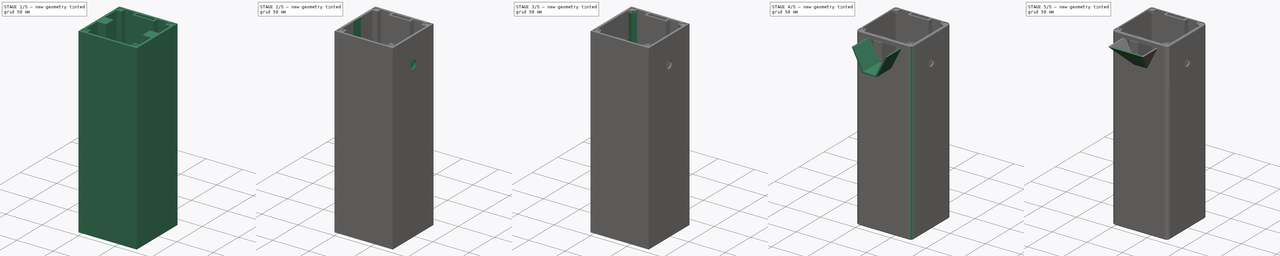
[diagram: build sequence overview — one tinted view per stage of 5, left to right]
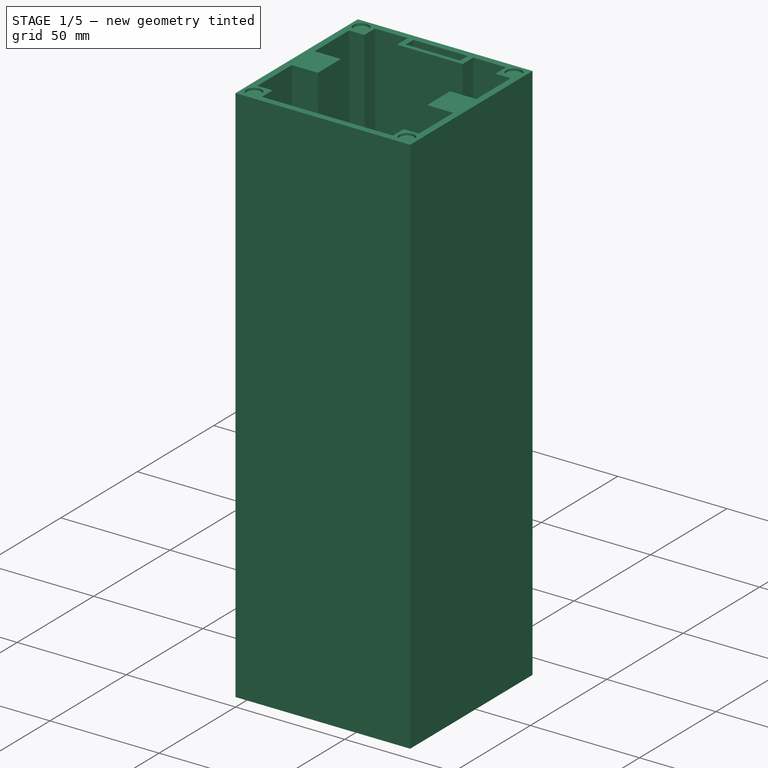
[diagram: stage 1 of 5 — iso view after this stage's code; geometry added in this stage tinted green]
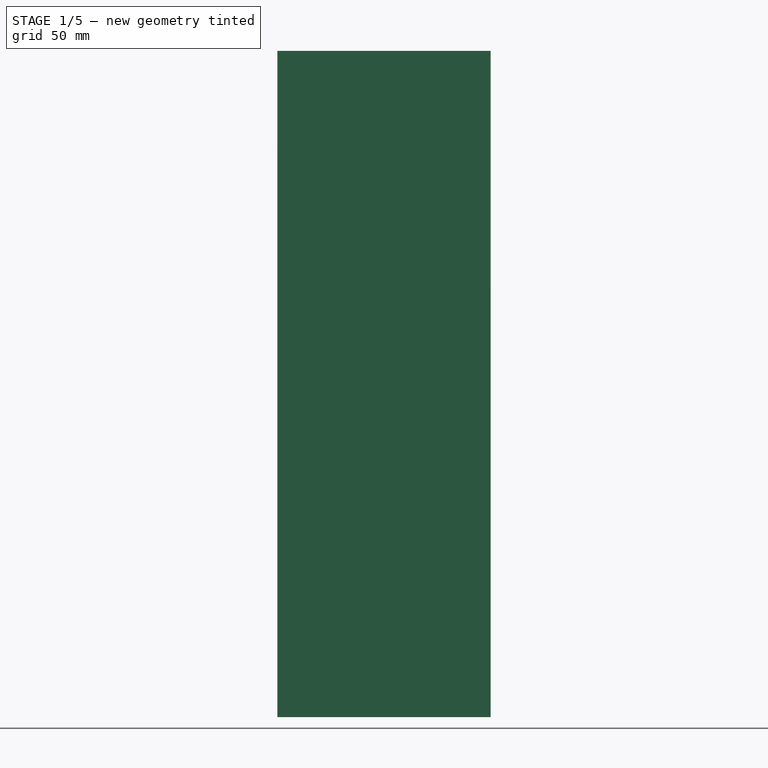
[diagram: stage 1 of 5 — front view after this stage's code; geometry added in this stage tinted green]
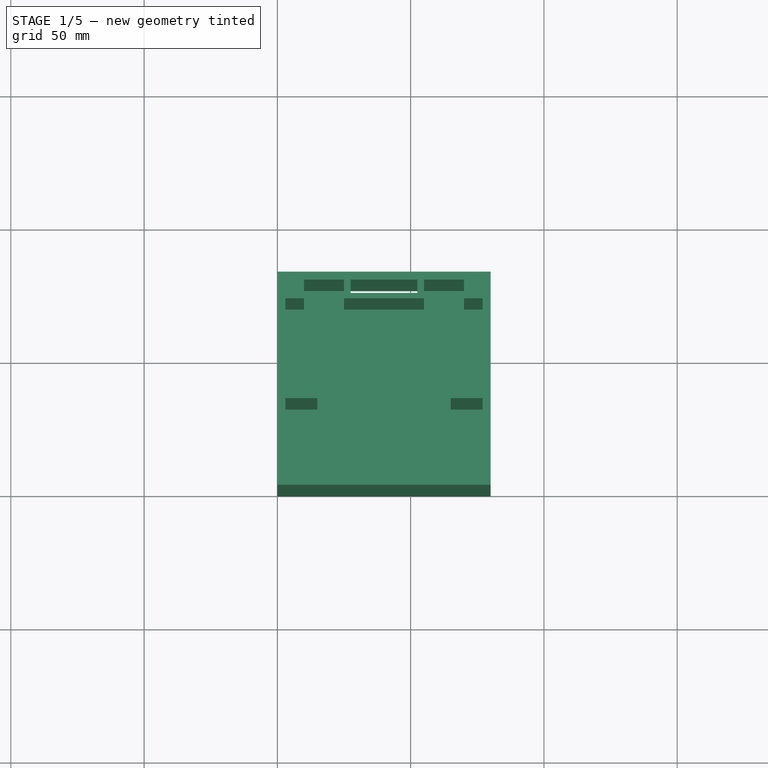
[diagram: stage 1 of 5 — top view after this stage's code; geometry added in this stage tinted green]
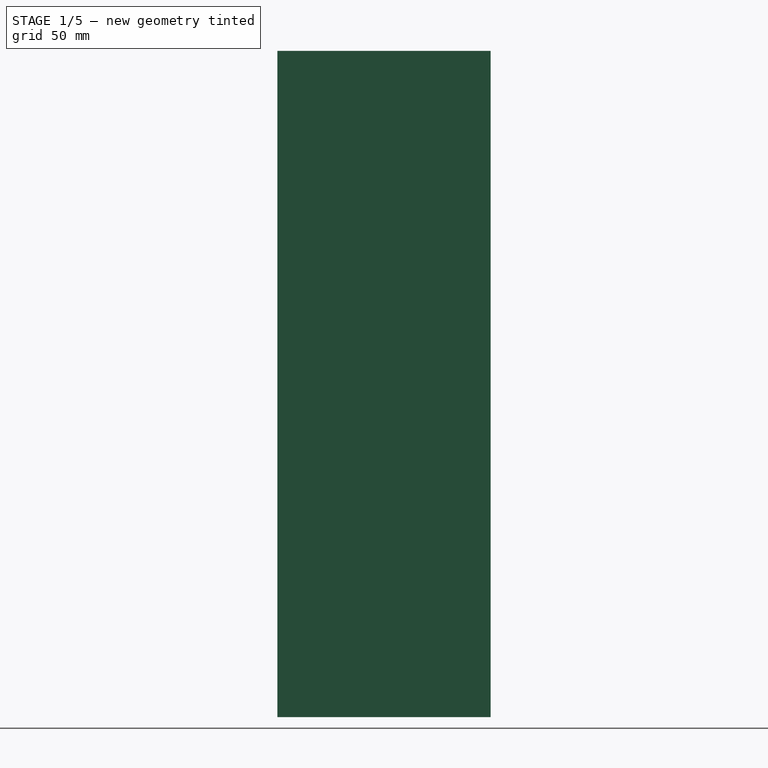
[diagram: stage 1 of 5 — right view after this stage's code; geometry added in this stage tinted green]
FCSTD DOCUMENT  (FreeCAD 0.17R12802 (Git))
Label: ermina_v4_tank
License: All rights reserved
LicenseURL: http://en.wikipedia.org/wiki/All_rights_reserved
objects: Sketcher::SketchObject×19, PartDesign::Pocket×16, PartDesign::Fillet×4, PartDesign::Pad×3, PartDesign::Chamfer×2, Part::Feature×2, Part::Plane×1
note: 66 computed .brp shape members not serialized (recipe doc carries the construction recipe); baked Part::Feature solids carry a one-line shape summary decoded from their .brp

FEATURE [Sketcher::SketchObject] Sketch
  MapMode = 5
  sketch-geometry (4):
    g0: LineSegment StartX=0 StartY=0 StartZ=0 EndX=80 EndY=0 EndZ=0
    g1: LineSegment StartX=80 StartY=0 StartZ=0 EndX=80 EndY=80 EndZ=0
    g2: LineSegment StartX=80 StartY=80 StartZ=0 EndX=0 EndY=80 EndZ=0
    g3: LineSegment StartX=0 StartY=80 StartZ=0 EndX=0 EndY=0 EndZ=0
  constraints (12):
    c: Coincident(g0,g1)
    c: Coincident(g1,g2)
    c: Coincident(g2,g3)
    c: Coincident(g3,g0)
    c: Horizontal(g0)
    c: Horizontal(g2)
    c: Vertical(g1)
    c: Vertical(g3)
    c: Coincident(g0,g-1)
    c: Equal(g2,g0)
    c: Equal(g0,g3)
    c: DistanceX(g0) = 80
FEATURE [PartDesign::Pad] Pad
  Length = 250
  Length2 = 100
  Profile = -> Sketch
  Type = 0
FEATURE [Sketcher::SketchObject] Sketch001
  ExternalGeometry = -> [Pad]
  MapMode = 5
  Placement = pos=(0,0,250) rot=(0,0,1;0rad)
  Support = -> [Pad]
  sketch-geometry (24):
    g0: LineSegment StartX=3 StartY=70 StartZ=0 EndX=10 EndY=70 EndZ=0
    g1: LineSegment StartX=10 StartY=70 StartZ=0 EndX=10 EndY=77 EndZ=0
    g2: LineSegment StartX=10 StartY=77 StartZ=0 EndX=25 EndY=77 EndZ=0
    g3: LineSegment StartX=25 StartY=77 StartZ=0 EndX=25 EndY=70 EndZ=0
    g4: LineSegment StartX=25 StartY=70 StartZ=0 EndX=55 EndY=70 EndZ=0
    g5: LineSegment StartX=55 StartY=70 StartZ=0 EndX=55 EndY=77 EndZ=0
    g6: LineSegment StartX=55 StartY=77 StartZ=0 EndX=70 EndY=77 EndZ=0
    g7: LineSegment StartX=70 StartY=77 StartZ=0 EndX=70 EndY=70 EndZ=0
    g8: LineSegment StartX=70 StartY=70 StartZ=0 EndX=77 EndY=70 EndZ=0
    g9: LineSegment StartX=77 StartY=70 StartZ=0 EndX=77 EndY=47.5 EndZ=0
    g10: LineSegment StartX=77 StartY=47.5 StartZ=0 EndX=65 EndY=47.5 EndZ=0
    g11: LineSegment StartX=65 StartY=47.5 StartZ=0 EndX=65 EndY=32.5 EndZ=0
    g12: LineSegment StartX=65 StartY=32.5 StartZ=0 EndX=77 EndY=32.5 EndZ=0
    g13: LineSegment StartX=77 StartY=32.5 StartZ=0 EndX=77 EndY=10 EndZ=0
    g14: LineSegment StartX=77 StartY=10 StartZ=0 EndX=70 EndY=10 EndZ=0
    g15: LineSegment StartX=70 StartY=10 StartZ=0 EndX=70 EndY=3 EndZ=0
    g16: LineSegment StartX=70 StartY=3 StartZ=0 EndX=10 EndY=3 EndZ=0
    g17: LineSegment StartX=10 StartY=3 StartZ=0 EndX=10 EndY=10 EndZ=0
    g18: LineSegment StartX=10 StartY=10 StartZ=0 EndX=3 EndY=10 EndZ=0
    g19: LineSegment StartX=3 StartY=10 StartZ=0 EndX=3 EndY=32.5 EndZ=0
    g20: LineSegment StartX=3 StartY=32.5 StartZ=0 EndX=15 EndY=32.5 EndZ=0
    g21: LineSegment StartX=15 StartY=32.5 StartZ=0 EndX=15 EndY=47.5 EndZ=0
    g22: LineSegment StartX=15 StartY=47.5 StartZ=0 EndX=3 EndY=47.5 EndZ=0
    g23: LineSegment StartX=3 StartY=47.5 StartZ=0 EndX=3 EndY=70 EndZ=0
  constraints (73):
    c: Horizontal(g0)
    c: Coincident(g0,g1)
    c: Vertical(g1)
    c: Coincident(g1,g2)
    c: Horizontal(g2)
    c: Coincident(g2,g3)
    c: Vertical(g3)
    c: Coincident(g3,g4)
    c: Horizontal(g4)
    c: Coincident(g4,g5)
    c: Coincident(g5,g6)
    c: Horizontal(g6)
    c: Coincident(g6,g7)
    c: Coincident(g7,g8)
    c: Horizontal(g8)
    c: Coincident(g8,g9)
    c: Vertical(g9)
    c: Coincident(g9,g10)
    c: Coincident(g10,g11)
    c: Vertical(g11)
    c: Coincident(g11,g12)
    c: Coincident(g12,g13)
    c: Coincident(g13,g14)
    c: Coincident(g14,g15)
    c: Vertical(g15)
    c: Coincident(g15,g16)
    c: Horizontal(g16)
    c: Coincident(g16,g17)
    c: Coincident(g17,g18)
    c: Coincident(g18,g19)
    c: Coincident(g19,g20)
    c: Horizontal(g20)
    c: Coincident(g20,g21)
    c: Coincident(g21,g22)
    c: Coincident(g22,g23)
    c: Coincident(g23,g0)
    c: Vertical(g23)
    c: Horizontal(g22)
    c: Horizontal(g10)
    c: Horizontal(g12)
    c: Horizontal(g14)
    c: Horizontal(g18)
    c: Vertical(g19)
    c: Vertical(g21)
    c: Vertical(g17)
    c: Vertical(g5)
    c: Vertical(g7)
    c: Vertical(g13)
    c: DistanceX(g4) = 30
    c: Equal(g23,g19)
    c: Equal(g19,g13)
    c: Equal(g13,g9)
    c: Equal(g8,g0)
    c: Equal(g0,g18)
    c: Equal(g18,g14)
    c: Equal(g17,g1)
    c: Equal(g1,g7)
    c: Equal(g7,g5)
    c: Equal(g5,g3)
    c: Equal(g3,g15)
    c: Equal(g6,g2)
    c: Equal(g12,g10)
    c: Equal(g10,g22)
    c: Equal(g22,g20)
    c: Equal(g21,g11)
    c: DistanceX(g-2,g0) = 3
    c: Distance(g6,g-3) = 3
    c: Distance(g8,g-4) = 3
    c: DistanceY(g-1,g15) = 3
    c: DistanceX(g14) = -7
    c: DistanceY(g15) = -7
    c: DistanceX(g22) = -12
    c: DistanceY(g11) = -15
FEATURE [PartDesign::Pocket] Pocket
  Length = 245
  Profile = -> Sketch001
  Type = 0
FEATURE [Sketcher::SketchObject] Sketch002
  ExternalGeometry = -> [Pocket]
  MapMode = 5
  Placement = pos=(0,0,250) rot=(0,0,1;0rad)
  Support = -> [Pocket]
  sketch-geometry (4):
    g0: Circle CenterX=5 CenterY=75 CenterZ=0 NormalX=0 NormalY=0 NormalZ=1 AngleXU=0 Radius=3.5
    g1: Circle CenterX=75 CenterY=75 CenterZ=0 NormalX=0 NormalY=0 NormalZ=1 AngleXU=0 Radius=3.5
    g2: Circle CenterX=5 CenterY=5 CenterZ=0 NormalX=0 NormalY=0 NormalZ=1 AngleXU=0 Radius=3.5
    g3: Circle CenterX=75 CenterY=5 CenterZ=0 NormalX=0 NormalY=0 NormalZ=1 AngleXU=0 Radius=3.5
  constraints (12):
    c: Equal(g3,g1)
    c: Equal(g1,g0)
    c: Equal(g0,g2)
    c: Radius(g1) = 3.5
    c: Distance(g0,g-3) = 5
    c: DistanceX(g-2,g0) = 5
    c: Distance(g1,g-3) = 5
    c: Distance(g1,g-4) = 5
    c: DistanceY(g-1,g2) = 5
    c: DistanceX(g-2,g2) = 5
    c: Distance(g3,g-4) = 5
    c: DistanceY(g-1,g3) = 5
FEATURE [PartDesign::Pocket] Pocket001
  Length = 1
  Profile = -> Sketch002
  Type = 0
FEATURE [Sketcher::SketchObject] Sketch003
  ExternalGeometry = -> [Pocket001]
  MapMode = 5
  Placement = pos=(0,0,250) rot=(0,0,1;0rad)
  Support = -> [Pocket001]
  sketch-geometry (4):
    g0: LineSegment StartX=27.5 StartY=77 StartZ=0 EndX=52.5 EndY=77 EndZ=0
    g1: LineSegment StartX=52.5 StartY=77 StartZ=0 EndX=52.5 EndY=72 EndZ=0
    g2: LineSegment StartX=52.5 StartY=72 StartZ=0 EndX=27.5 EndY=72 EndZ=0
    g3: LineSegment StartX=27.5 StartY=72 StartZ=0 EndX=27.5 EndY=77 EndZ=0
  constraints (14):
    c: Coincident(g0,g1)
    c: Coincident(g1,g2)
    c: Coincident(g2,g3)
    c: Coincident(g3,g0)
    c: Horizontal(g0)
    c: Horizontal(g2)
    c: Vertical(g1)
    c: Vertical(g3)
    c: Equal(g0,g2)
    c: Equal(g1,g3)
    c: Distance(g0,g-3) = 3
    c: DistanceY(g1) = -5
    c: DistanceX(g2) = -25
    c: DistanceX(g-2,g0) = 27.5
FEATURE [PartDesign::Pocket] Pocket002
  Length = 5
  Profile = -> Sketch003
  Type = 1
FEATURE [Sketcher::SketchObject] Sketch004
  ExternalGeometry = -> [Pocket002]
  MapMode = 5
  Placement = pos=(0,0,0) rot=(1,0,0;3.14159rad)
  Support = -> [Pocket002]
  sketch-geometry (4):
    g0: Circle CenterX=5 CenterY=-5 CenterZ=0 NormalX=0 NormalY=0 NormalZ=1 AngleXU=0 Radius=3.5
    g1: Circle CenterX=75 CenterY=-5 CenterZ=0 NormalX=0 NormalY=0 NormalZ=1 AngleXU=0 Radius=3.5
    g2: Circle CenterX=5 CenterY=-75 CenterZ=0 NormalX=0 NormalY=0 NormalZ=1 AngleXU=0 Radius=3.5
    g3: Circle CenterX=75 CenterY=-75 CenterZ=0 NormalX=0 NormalY=0 NormalZ=1 AngleXU=0 Radius=3.5
  constraints (12):
    c: Equal(g3,g1)
    c: Equal(g1,g0)
    c: Equal(g0,g2)
    c: Radius(g0) = 3.5
    c: Distance(g0,g-3) = 5
    c: DistanceX(g-2,g0) = 5
    c: Distance(g1,g-3) = 5
    c: Distance(g1,g-4) = 5
    c: Distance(g3,g-5) = 5
    c: Distance(g3,g-4) = 5
    c: Distance(g2,g-5) = 5
    c: DistanceX(g-2,g2) = 5
FEATURE [PartDesign::Pocket] Pocket003
  Length = 1
  Profile = -> Sketch004
  Type = 0
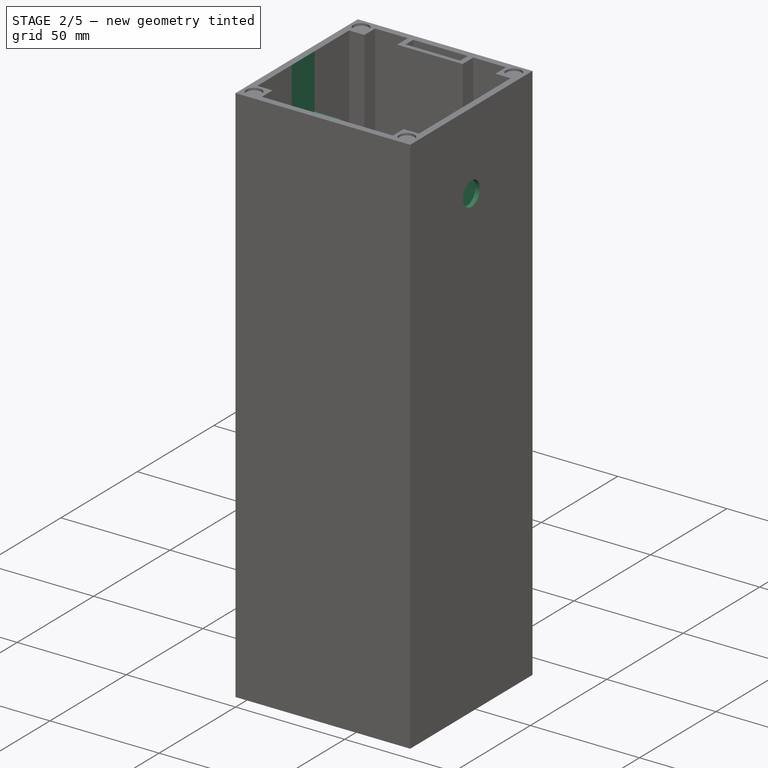
[diagram: stage 2 of 5 — iso view after this stage's code; geometry added in this stage tinted green]
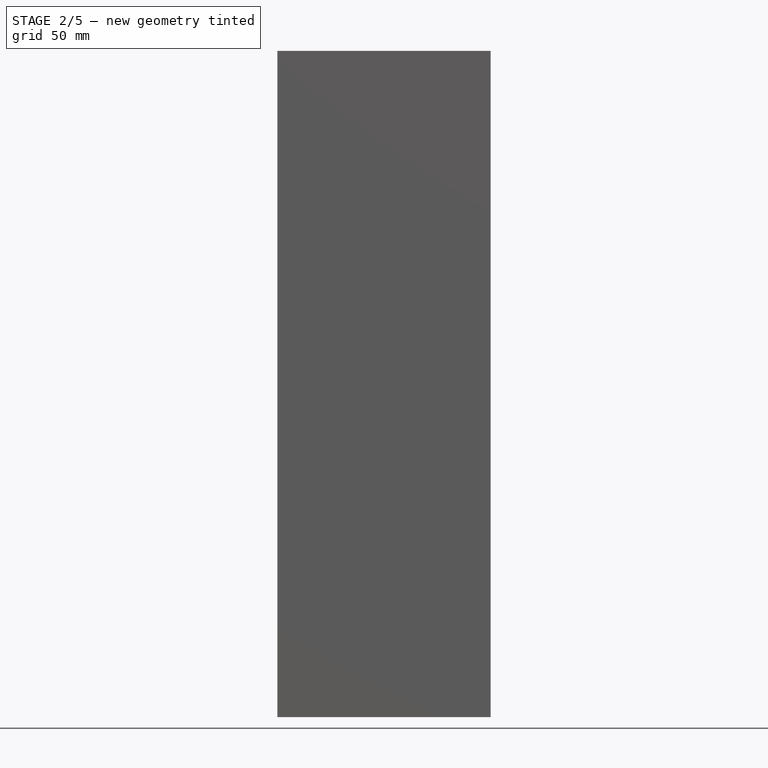
[diagram: stage 2 of 5 — front view after this stage's code; geometry added in this stage tinted green]
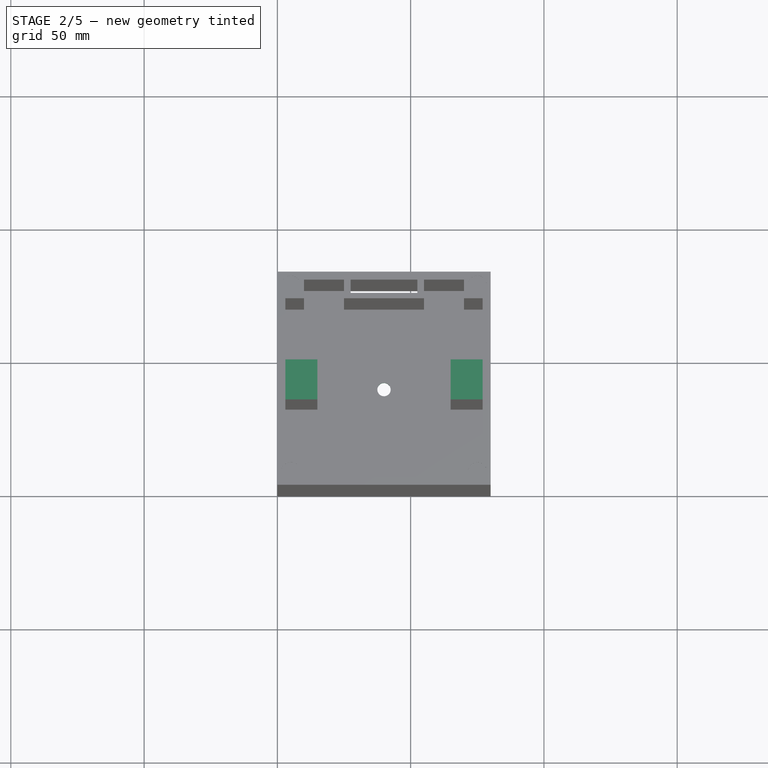
[diagram: stage 2 of 5 — top view after this stage's code; geometry added in this stage tinted green]
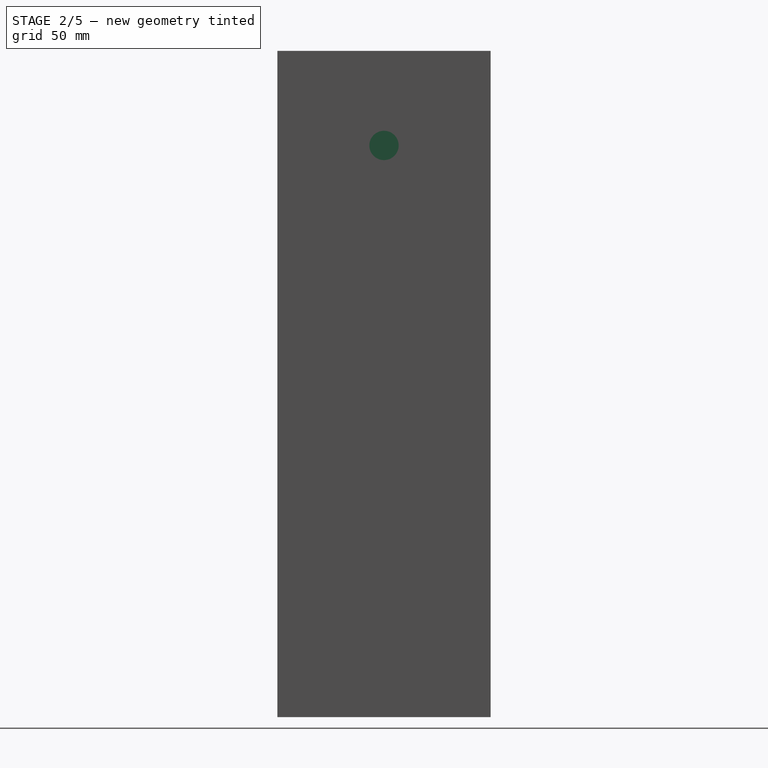
[diagram: stage 2 of 5 — right view after this stage's code; geometry added in this stage tinted green]
FEATURE [Sketcher::SketchObject] Sketch005
  ExternalGeometry = -> [Pocket003]
  MapMode = 5
  Placement = pos=(0,0,250) rot=(0,0,1;0rad)
  Support = -> [Pocket003]
  sketch-geometry (8):
    g0: LineSegment StartX=15 StartY=47.5 StartZ=0 EndX=3 EndY=47.5 EndZ=0
    g1: LineSegment StartX=3 StartY=47.5 StartZ=0 EndX=3 EndY=32.5 EndZ=0
    g2: LineSegment StartX=3 StartY=32.5 StartZ=0 EndX=15 EndY=32.5 EndZ=0
    g3: LineSegment StartX=15 StartY=32.5 StartZ=0 EndX=15 EndY=47.5 EndZ=0
    g4: LineSegment StartX=77 StartY=32.5 StartZ=0 EndX=65 EndY=32.5 EndZ=0
    g5: LineSegment StartX=65 StartY=32.5 StartZ=0 EndX=65 EndY=47.5 EndZ=0
    g6: LineSegment StartX=65 StartY=47.5 StartZ=0 EndX=77 EndY=47.5 EndZ=0
    g7: LineSegment StartX=77 StartY=47.5 StartZ=0 EndX=77 EndY=32.5 EndZ=0
  constraints (20):
    c: Coincident(g0,g1)
    c: Coincident(g1,g2)
    c: Coincident(g2,g3)
    c: Coincident(g3,g0)
    c: Horizontal(g0)
    c: Horizontal(g2)
    c: Vertical(g1)
    c: Vertical(g3)
    c: Coincident(g0,g-4)
    c: Coincident(g1,g-5)
    c: Coincident(g4,g5)
    c: Coincident(g5,g6)
    c: Coincident(g6,g7)
    c: Coincident(g7,g4)
    c: Horizontal(g4)
    c: Horizontal(g6)
    c: Vertical(g5)
    c: Vertical(g7)
    c: Coincident(g4,g-7)
    c: Coincident(g5,g-8)
FEATURE [PartDesign::Pocket] Pocket004
  Length = 25
  Profile = -> Sketch005
  Type = 0
FEATURE [Sketcher::SketchObject] Sketch006
  ExternalGeometry = -> [Pocket004]
  MapMode = 5
  Placement = pos=(0,0,0) rot=(1,0,0;3.14159rad)
  Support = -> [Pocket004]
  sketch-geometry (8):
    g0: LineSegment StartX=2 StartY=-34.5 StartZ=0 EndX=13 EndY=-34.5 EndZ=0
    g1: LineSegment StartX=13 StartY=-34.5 StartZ=0 EndX=13 EndY=-45.5 EndZ=0
    g2: LineSegment StartX=13 StartY=-45.5 StartZ=0 EndX=2 EndY=-45.5 EndZ=0
    g3: LineSegment StartX=2 StartY=-45.5 StartZ=0 EndX=2 EndY=-34.5 EndZ=0
    g4: LineSegment StartX=67 StartY=-34.5 StartZ=0 EndX=78 EndY=-34.5 EndZ=0
    g5: LineSegment StartX=78 StartY=-34.5 StartZ=0 EndX=78 EndY=-45.5 EndZ=0
    g6: LineSegment StartX=78 StartY=-45.5 StartZ=0 EndX=67 EndY=-45.5 EndZ=0
    g7: LineSegment StartX=67 StartY=-45.5 StartZ=0 EndX=67 EndY=-34.5 EndZ=0
  constraints (24):
    c: Coincident(g0,g1)
    c: Coincident(g1,g2)
    c: Coincident(g2,g3)
    c: Coincident(g3,g0)
    c: Horizontal(g0)
    c: Horizontal(g2)
    c: Vertical(g1)
    c: Vertical(g3)
    c: Distance(g0,g-8) = 2
    c: Distance(g2,g-6) = 2
    c: Distance(g0,g-7) = 2
    c: Coincident(g4,g5)
    c: Coincident(g5,g6)
    c: Coincident(g6,g7)
    c: Coincident(g7,g4)
    c: Horizontal(g4)
    c: Horizontal(g6)
    c: Vertical(g5)
    c: Vertical(g7)
    c: Distance(g4,g-3) = 2
    c: Distance(g4,g-5) = 2
    c: Distance(g6,g-4) = 2
    c: Distance(g4,g-11) = 2
    c: DistanceX(g-2,g0) = 2
FEATURE [PartDesign::Pocket] Pocket005
  Length = 220
  Profile = -> Sketch006
  Type = 0
FEATURE [Sketcher::SketchObject] Sketch007
  ExternalGeometry = -> [Pocket005]
  MapMode = 5
  Placement = pos=(80,0,0) rot=(0.57735,0.57735,0.57735;2.0944rad)
  Support = -> [Pocket005]
  sketch-geometry (1):
    g0: Circle CenterX=40 CenterY=214.5 CenterZ=0 NormalX=0 NormalY=0 NormalZ=1 AngleXU=0 Radius=5.5
  constraints (3):
    c: Radius(g0) = 5.5
    c: Distance(g0,g-5) = 7.5
    c: Distance(g0,g-6) = 10.5
FEATURE [PartDesign::Pocket] Pocket006
  Length = 2
  Profile = -> Sketch007
  Type = 0
FEATURE [Sketcher::SketchObject] Sketch008
  ExternalGeometry = -> [Pocket006]
  MapMode = 5
  Placement = pos=(0,0,0) rot=(0.57735,-0.57735,-0.57735;2.0944rad)
  Support = -> [Pocket006]
  sketch-geometry (1):
    g0: Circle CenterX=-40 CenterY=214.5 CenterZ=0 NormalX=0 NormalY=0 NormalZ=1 AngleXU=0 Radius=5.5
  constraints (3):
    c: Radius(g0) = 5.5
    c: Distance(g0,g-3) = 10.5
    c: Distance(g0,g-4) = 7.5
FEATURE [PartDesign::Pocket] Pocket007
  Length = 1
  Profile = -> Sketch008
  Type = 2
FEATURE [Sketcher::SketchObject] Sketch009
  MapMode = 5
  Placement = pos=(0,0,0) rot=(1,0,0;3.14159rad)
  Support = -> [Pocket007]
  sketch-geometry (1):
    g0: Circle CenterX=40 CenterY=-40 CenterZ=0 NormalX=0 NormalY=0 NormalZ=1 AngleXU=0 Radius=2.5
  constraints (3):
    c: Radius(g0) = 2.5
    c: DistanceX(g-2,g0) = 40
    c: DistanceY(g-1,g0) = -40
FEATURE [PartDesign::Pocket] Pocket008
  Length = 5
  Profile = -> Sketch009
  Type = 2
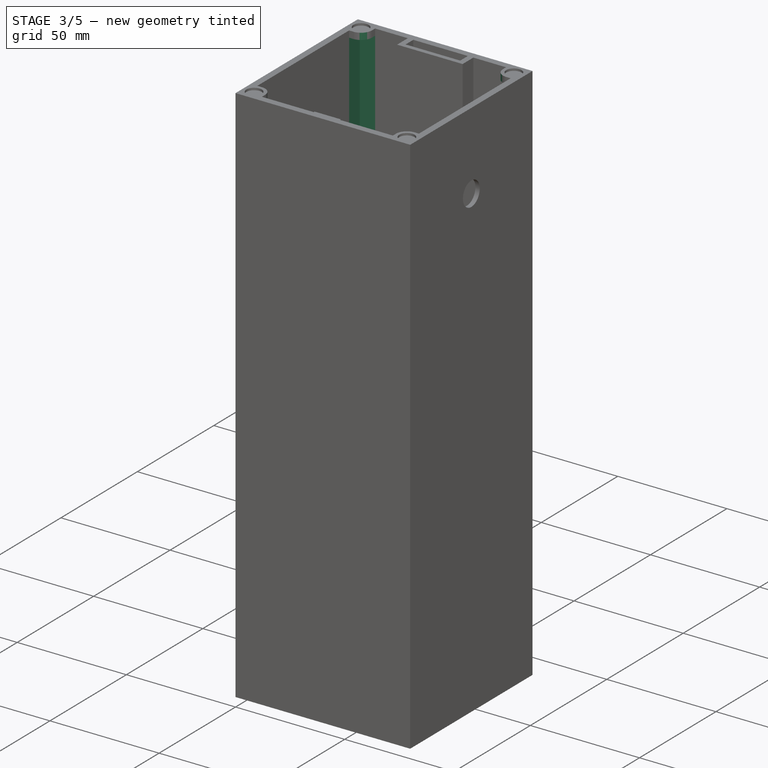
[diagram: stage 3 of 5 — iso view after this stage's code; geometry added in this stage tinted green]
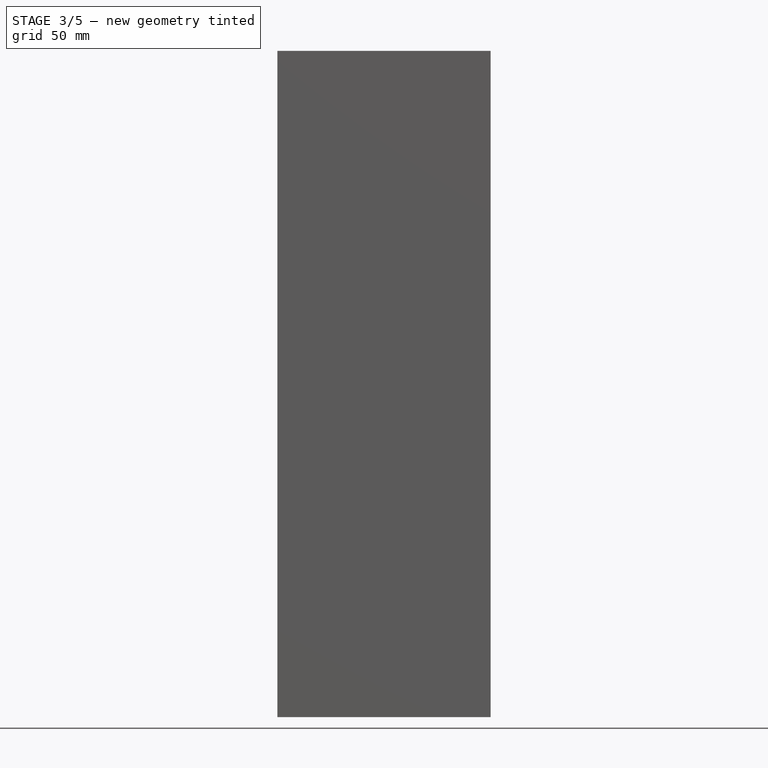
[diagram: stage 3 of 5 — front view after this stage's code; geometry added in this stage tinted green]
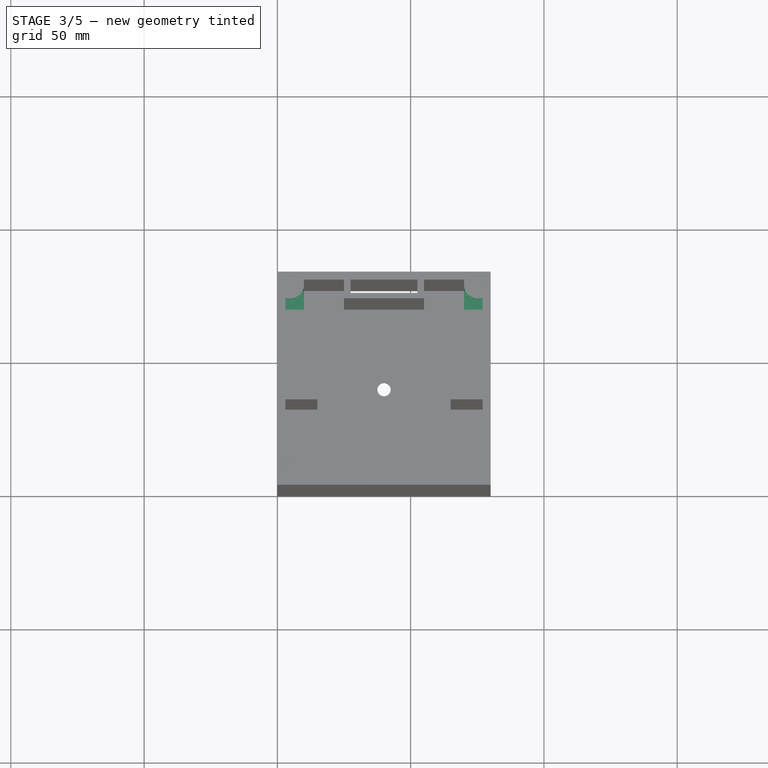
[diagram: stage 3 of 5 — top view after this stage's code; geometry added in this stage tinted green]
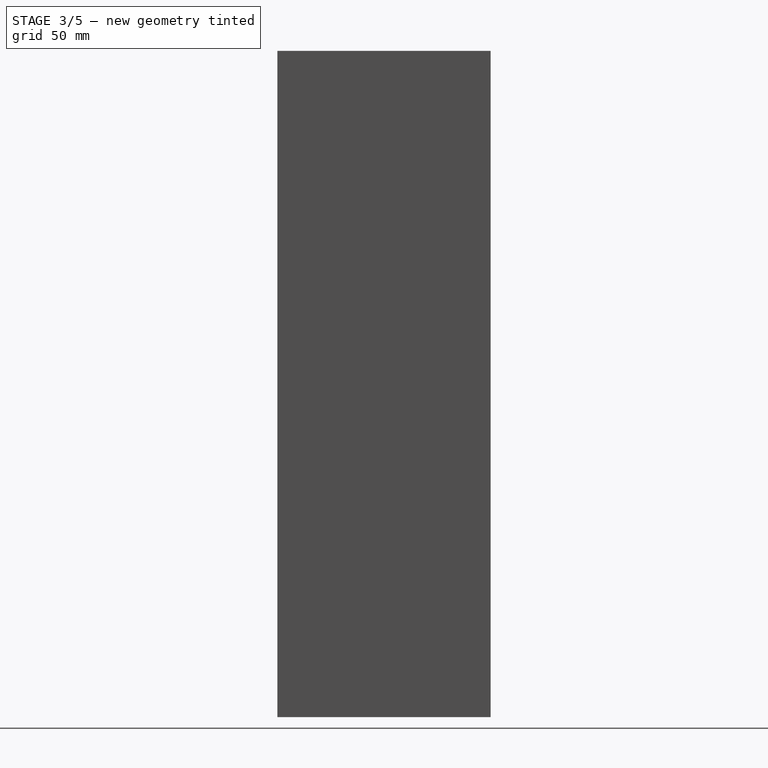
[diagram: stage 3 of 5 — right view after this stage's code; geometry added in this stage tinted green]
FEATURE [Sketcher::SketchObject] Sketch010
  ExternalGeometry = -> [Pocket008]
  MapMode = 5
  Placement = pos=(10,0,0) rot=(0.57735,0.57735,0.57735;2.0944rad)
  Support = -> [Pocket008]
  sketch-geometry (4):
    g0: LineSegment StartX=3 StartY=247 StartZ=0 EndX=10 EndY=247 EndZ=0
    g1: LineSegment StartX=10 StartY=247 StartZ=0 EndX=10 EndY=5 EndZ=0
    g2: LineSegment StartX=10 StartY=5 StartZ=0 EndX=3 EndY=5 EndZ=0
    g3: LineSegment StartX=3 StartY=5 StartZ=0 EndX=3 EndY=247 EndZ=0
  constraints (11):
    c: Coincident(g0,g1)
    c: Coincident(g1,g2)
    c: Coincident(g2,g3)
    c: Coincident(g3,g0)
    c: Horizontal(g0)
    c: Horizontal(g2)
    c: Vertical(g1)
    c: Vertical(g3)
    c: PointOnObject(g0,g-6)
    c: Coincident(g1,g-4)
    c: Distance(g0,g-5) = 3
FEATURE [PartDesign::Pocket] Pocket009
  Length = 7
  Profile = -> Sketch010
  Type = 0
FEATURE [Sketcher::SketchObject] Sketch011
  ExternalGeometry = -> [Pocket009]
  MapMode = 5
  Placement = pos=(10,0,0) rot=(0.57735,0.57735,0.57735;2.0944rad)
  Support = -> [Pocket009]
  sketch-geometry (4):
    g0: LineSegment StartX=70 StartY=5 StartZ=0 EndX=77 EndY=5 EndZ=0
    g1: LineSegment StartX=77 StartY=5 StartZ=0 EndX=77 EndY=247 EndZ=0
    g2: LineSegment StartX=77 StartY=247 StartZ=0 EndX=70 EndY=247 EndZ=0
    g3: LineSegment StartX=70 StartY=247 StartZ=0 EndX=70 EndY=5 EndZ=0
  constraints (11):
    c: Coincident(g0,g1)
    c: Coincident(g1,g2)
    c: Coincident(g2,g3)
    c: Coincident(g3,g0)
    c: Horizontal(g0)
    c: Horizontal(g2)
    c: Vertical(g1)
    c: Vertical(g3)
    c: Coincident(g0,g-4)
    c: PointOnObject(g1,g-5)
    c: Distance(g2,g-6) = 3
FEATURE [PartDesign::Pocket] Pocket010
  Length = 7
  Profile = -> Sketch011
  Type = 0
FEATURE [Sketcher::SketchObject] Sketch012
  ExternalGeometry = -> [Pocket010]
  MapMode = 5
  Placement = pos=(70,0,0) rot=(0.57735,-0.57735,-0.57735;2.0944rad)
  Support = -> [Pocket010]
  sketch-geometry (4):
    g0: LineSegment StartX=-10 StartY=5 StartZ=0 EndX=-3 EndY=5 EndZ=0
    g1: LineSegment StartX=-3 StartY=5 StartZ=0 EndX=-3 EndY=247 EndZ=0
    g2: LineSegment StartX=-3 StartY=247 StartZ=0 EndX=-10 EndY=247 EndZ=0
    g3: LineSegment StartX=-10 StartY=247 StartZ=0 EndX=-10 EndY=5 EndZ=0
  constraints (11):
    c: Coincident(g0,g1)
    c: Coincident(g1,g2)
    c: Coincident(g2,g3)
    c: Coincident(g3,g0)
    c: Horizontal(g0)
    c: Horizontal(g2)
    c: Vertical(g1)
    c: Vertical(g3)
    c: Coincident(g0,g-4)
    c: PointOnObject(g1,g-5)
    c: Distance(g2,g-6) = 3
FEATURE [PartDesign::Pocket] Pocket011
  Length = 7
  Profile = -> Sketch012
  Type = 0
FEATURE [Sketcher::SketchObject] Sketch013
  ExternalGeometry = -> [Pocket011]
  MapMode = 5
  Placement = pos=(70,0,0) rot=(0.57735,-0.57735,-0.57735;2.0944rad)
  Support = -> [Pocket011]
  sketch-geometry (4):
    g0: LineSegment StartX=-70 StartY=5 StartZ=0 EndX=-77 EndY=5 EndZ=0
    g1: LineSegment StartX=-77 StartY=5 StartZ=0 EndX=-77 EndY=247 EndZ=0
    g2: LineSegment StartX=-77 StartY=247 StartZ=0 EndX=-70 EndY=247 EndZ=0
    g3: LineSegment StartX=-70 StartY=247 StartZ=0 EndX=-70 EndY=5 EndZ=0
  constraints (11):
    c: Coincident(g0,g1)
    c: Coincident(g1,g2)
    c: Coincident(g2,g3)
    c: Coincident(g3,g0)
    c: Horizontal(g0)
    c: Horizontal(g2)
    c: Vertical(g1)
    c: Vertical(g3)
    c: Coincident(g0,g-4)
    c: PointOnObject(g1,g-5)
    c: Distance(g2,g-6) = 3
FEATURE [PartDesign::Pocket] Pocket012
  Length = 7
  Profile = -> Sketch013
  Type = 0
FEATURE [PartDesign::Fillet] Fillet
  Base = -> Pocket012 [Edge125,Edge139,Edge147,Edge109]
  Radius = 5
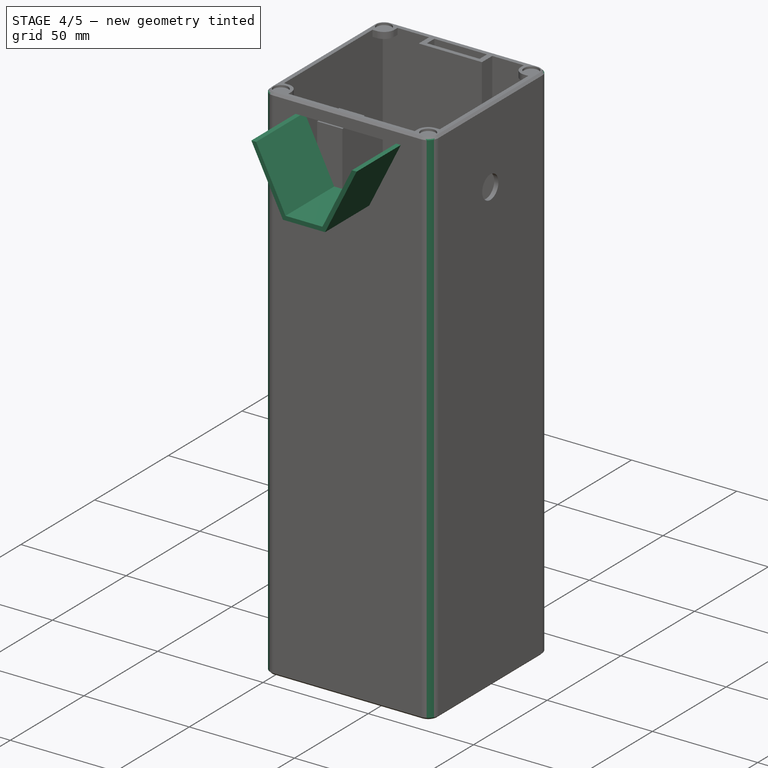
[diagram: stage 4 of 5 — iso view after this stage's code; geometry added in this stage tinted green]
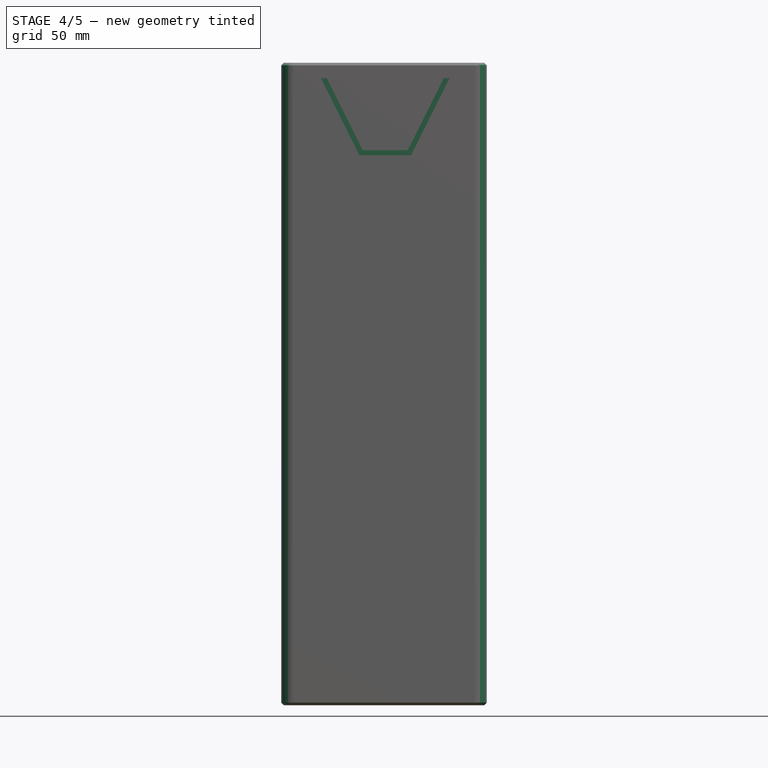
[diagram: stage 4 of 5 — front view after this stage's code; geometry added in this stage tinted green]
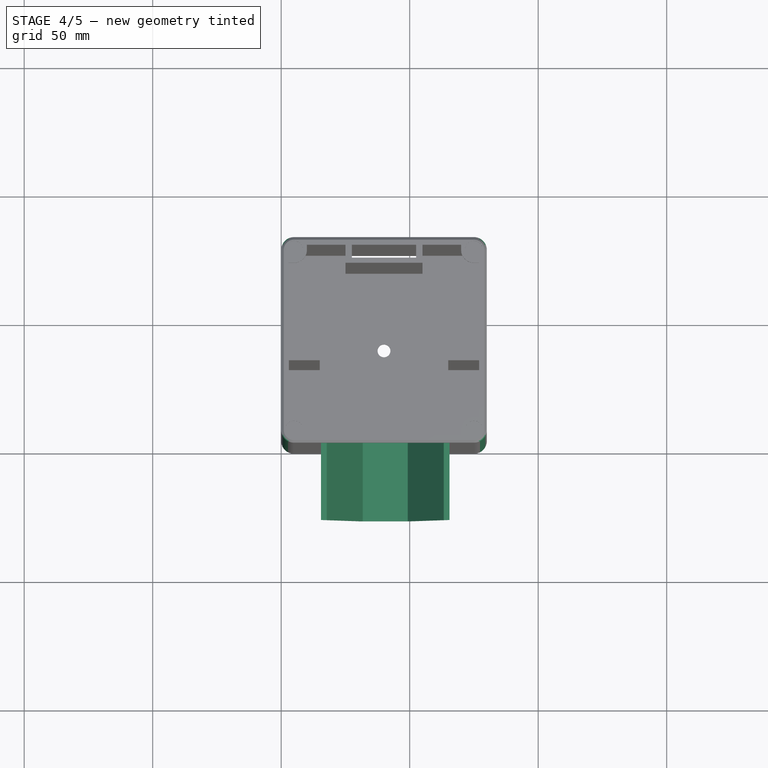
[diagram: stage 4 of 5 — top view after this stage's code; geometry added in this stage tinted green]
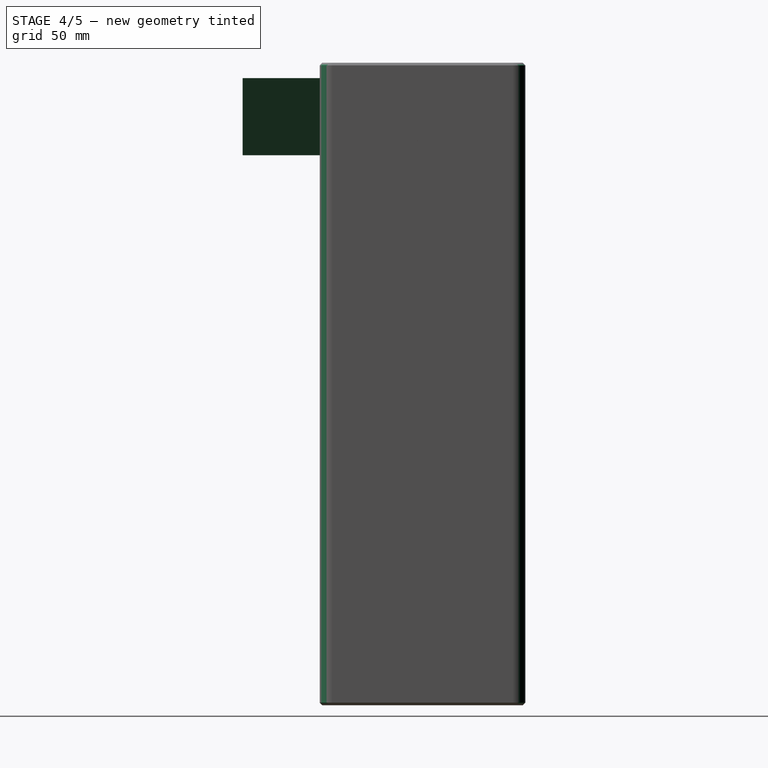
[diagram: stage 4 of 5 — right view after this stage's code; geometry added in this stage tinted green]
FEATURE [PartDesign::Fillet] Fillet001
  Base = -> Fillet [Edge98,Edge104,Edge97,Edge100]
  Radius = 5
FEATURE [PartDesign::Chamfer] Chamfer
  Base = -> Fillet001 [Edge8,Edge7,Edge5,Edge3,Edge1,Edge2,Edge4,Edge6]
  Size = 1
FEATURE [PartDesign::Chamfer] Chamfer001
  Base = -> Chamfer [Edge137,Edge134,Edge139,Edge143,Edge149,Edge150,Edge147,Edge141]
  Size = 1
FEATURE [Sketcher::SketchObject] Sketch014
  ExternalGeometry = -> [Chamfer001]
  MapMode = 5
  Placement = pos=(0,0,0) rot=(1,0,0;1.5708rad)
  Support = -> [Chamfer001]
  sketch-geometry (4):
    g0: LineSegment StartX=15.5 StartY=244 StartZ=0 EndX=65.5 EndY=244 EndZ=0
    g1: LineSegment StartX=65.5 StartY=244 StartZ=0 EndX=50.5 EndY=214 EndZ=0
    g2: LineSegment StartX=50.5 StartY=214 StartZ=0 EndX=30.5 EndY=214 EndZ=0
    g3: LineSegment StartX=30.5 StartY=214 StartZ=0 EndX=15.5 EndY=244 EndZ=0
  constraints (12):
    c: Coincident(g0,g1)
    c: Coincident(g1,g2)
    c: Coincident(g2,g3)
    c: Coincident(g3,g0)
    c: Horizontal(g0)
    c: Horizontal(g2)
    c: DistanceX(g0) = 50
    c: DistanceX(g2) = -20
    c: Distance(g0,g-5) = 14.5
    c: Distance(g0,g-3) = 5
    c: Distance(g1,g0) = 30
    c: Equal(g1,g3)
FEATURE [PartDesign::Pad] Pad001
  Length = 30
  Length2 = 100
  Profile = -> Sketch014
  Type = 0
FEATURE [Sketcher::SketchObject] Sketch015
  ExternalGeometry = -> [Pad001]
  MapMode = 5
  Placement = pos=(0,-30,0) rot=(1,0,0;1.5708rad)
  Support = -> [Pad001]
  sketch-geometry (4):
    g0: LineSegment StartX=17.7361 StartY=244 StartZ=0 EndX=63.2639 EndY=244 EndZ=0
    g1: LineSegment StartX=63.2639 StartY=244 StartZ=0 EndX=49.2639 EndY=216 EndZ=0
    g2: LineSegment StartX=49.2639 StartY=216 StartZ=0 EndX=31.7361 EndY=216 EndZ=0
    g3: LineSegment StartX=31.7361 StartY=216 StartZ=0 EndX=17.7361 EndY=244 EndZ=0
  constraints (12):
    c: Horizontal(g0)
    c: Coincident(g0,g1)
    c: Coincident(g1,g2)
    c: Horizontal(g2)
    c: Coincident(g2,g3)
    c: Coincident(g3,g0)
    c: Parallel(g3,g-5)
    c: Parallel(g1,g-3)
    c: Distance(g1,g-3) = 2
    c: Distance(g2,g-6) = 2
    c: Distance(g0,g-5) = 2
    c: PointOnObject(g0,g-4)
FEATURE [PartDesign::Pocket] Pocket013
  Length = 0
  Profile = -> Sketch015
  Type = 3
  UpToFace = -> Pad001 [Face62]
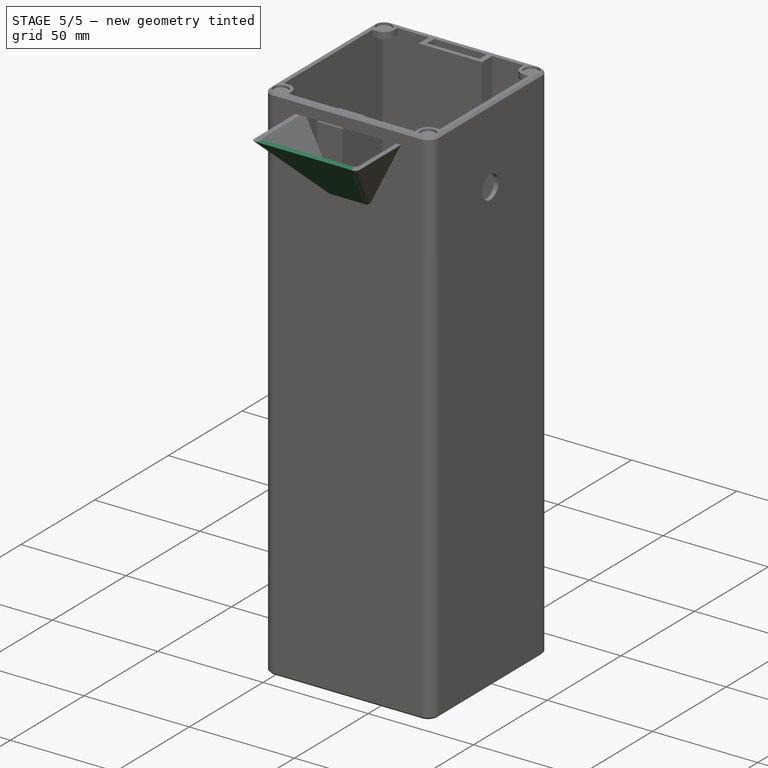
[diagram: stage 5 of 5 — iso view after this stage's code; geometry added in this stage tinted green]
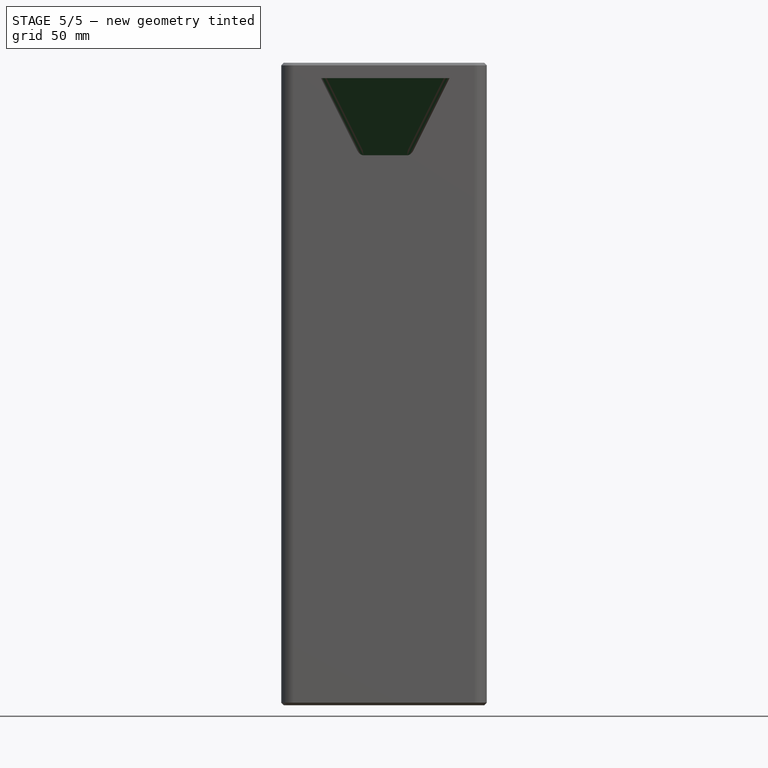
[diagram: stage 5 of 5 — front view after this stage's code; geometry added in this stage tinted green]
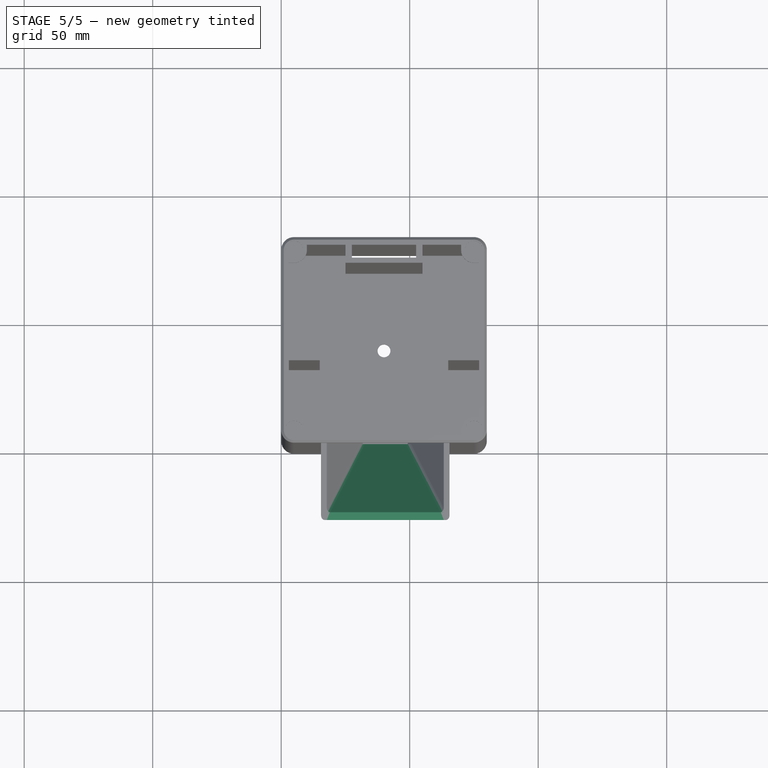
[diagram: stage 5 of 5 — top view after this stage's code; geometry added in this stage tinted green]
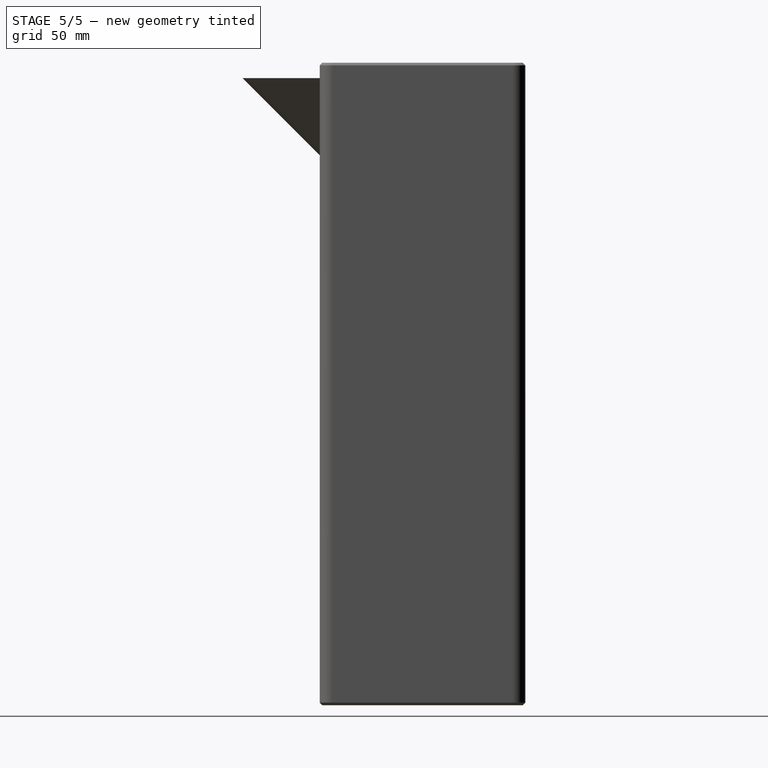
[diagram: stage 5 of 5 — right view after this stage's code; geometry added in this stage tinted green]
FEATURE [Sketcher::SketchObject] Sketch016
  ExternalGeometry = -> [Pocket013]
  MapMode = 5
  Placement = pos=(80,0,0) rot=(0.57735,0.57735,0.57735;2.0944rad)
  Support = -> [Pocket013]
  sketch-geometry (3):
    g0: LineSegment StartX=0 StartY=214 StartZ=0 EndX=-30 EndY=244 EndZ=0
    g1: LineSegment StartX=-30 StartY=244 StartZ=0 EndX=-30 EndY=214 EndZ=0
    g2: LineSegment StartX=-30 StartY=214 StartZ=0 EndX=0 EndY=214 EndZ=0
  constraints (6):
    c: Coincident(g-6,g0)
    c: Coincident(g0,g-5)
    c: Coincident(g0,g1)
    c: Coincident(g1,g-6)
    c: Coincident(g1,g2)
    c: Coincident(g2,g0)
FEATURE [PartDesign::Pocket] Pocket014
  Length = 0
  Profile = -> Sketch016
  Type = 3
  UpToFace = -> Pocket013 [Face9]
FEATURE [Sketcher::SketchObject] Sketch017
  ExternalGeometry = -> [Pocket014]
  MapMode = 5
  Placement = pos=(80,0,0) rot=(0.57735,0.57735,0.57735;2.0944rad)
  Support = -> [Pocket014]
  sketch-geometry (4):
    g0: LineSegment StartX=-30 StartY=244 StartZ=0 EndX=-27 EndY=244 EndZ=0
    g1: LineSegment StartX=-27 StartY=244 StartZ=0 EndX=0 EndY=217 EndZ=0
    g2: LineSegment StartX=0 StartY=217 StartZ=0 EndX=0 EndY=214 EndZ=0
    g3: LineSegment StartX=0 StartY=214 StartZ=0 EndX=-30 EndY=244 EndZ=0
  constraints (10):
    c: Horizontal(g0)
    c: Coincident(g0,g1)
    c: Coincident(g1,g2)
    c: Coincident(g2,g-3)
    c: Vertical(g2)
    c: Coincident(g2,g3)
    c: Coincident(g3,g0)
    c: Parallel(g-3,g1)
    c: DistanceX(g0) = 3
    c: Coincident(g0,g-3)
FEATURE [PartDesign::Pad] Pad002
  Length = 10
  Length2 = 100
  Profile = -> Sketch017
  Type = 3
  UpToFace = -> Pocket014 [Face3]
FEATURE [Sketcher::SketchObject] Sketch018
  ExternalGeometry = -> [Pad002]
  MapMode = 5
  Placement = pos=(0,0,0) rot=(1,0,0;1.5708rad)
  Support = -> [Pad002]
  sketch-geometry (4):
    g0: LineSegment StartX=50.5 StartY=214 StartZ=0 EndX=65.5 EndY=244 EndZ=0
    g1: LineSegment StartX=65.5 StartY=244 StartZ=0 EndX=80 EndY=244 EndZ=0
    g2: LineSegment StartX=80 StartY=244 StartZ=0 EndX=80 EndY=214 EndZ=0
    g3: LineSegment StartX=80 StartY=214 StartZ=0 EndX=50.5 EndY=214 EndZ=0
  constraints (8):
    c: Coincident(g0,g-4)
    c: Coincident(g0,g1)
    c: Coincident(g1,g-4)
    c: Coincident(g1,g2)
    c: Coincident(g2,g3)
    c: Coincident(g3,g0)
    c: Coincident(g2,g-6)
    c: Coincident(g-5,g0)
FEATURE [PartDesign::Pocket] Pocket015
  Length = 5
  Profile = -> Sketch018
  Reversed = true
  Type = 1
FEATURE [PartDesign::Fillet] Fillet002
  Base = -> Pocket015 [Edge3,Edge18]
  Radius = 2
FEATURE [PartDesign::Fillet] Fillet003
  Base = -> Fillet002 [Edge56,Edge93]
  Radius = 2
FEATURE [Part::Plane] Plane
  AttacherType = Attacher::AttachEngine3D
  Length = 100
  Placement = pos=(-10,-10,125) rot=(0,0,1;0rad)
  Width = 100
FEATURE [Part::Feature] Solid  label="top"
  shape: bbox 80 x 110.1 x 125 mm, 110 faces (baked)
FEATURE [Part::Feature] Solid001  label="btm"
  shape: bbox 80 x 80 x 125 mm, 68 faces (baked)
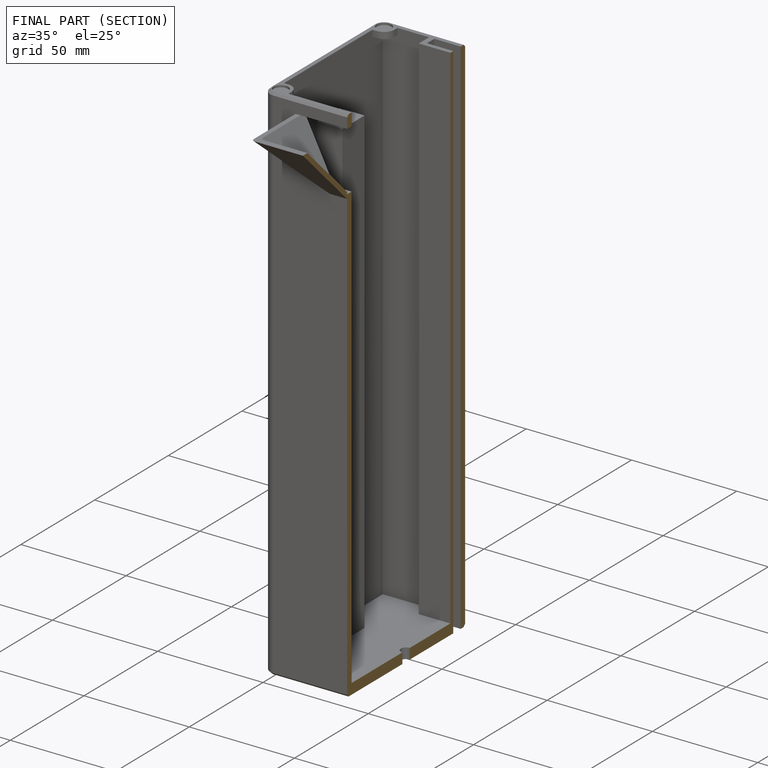
[diagram: finished part — half-section view (interior)]
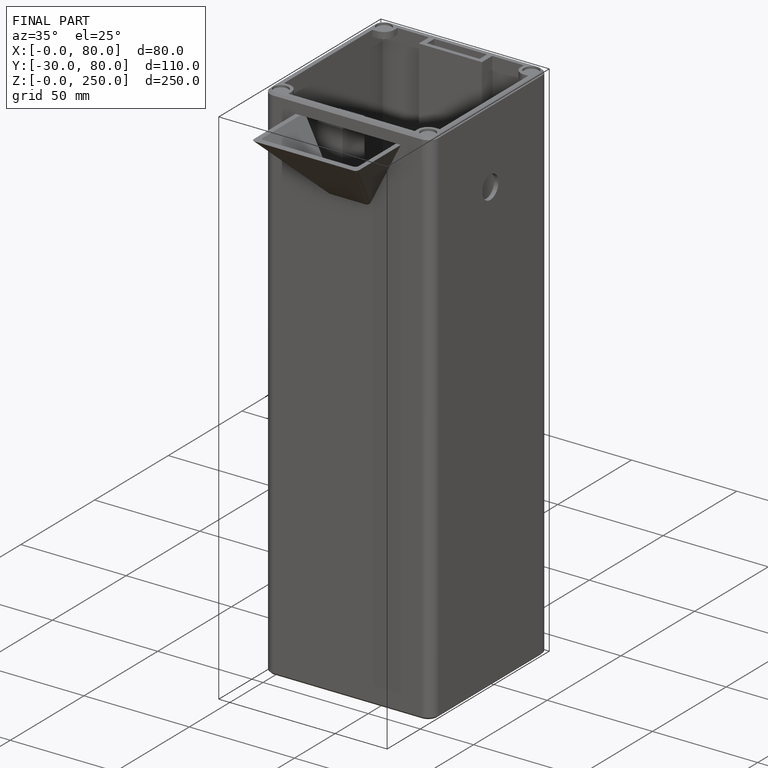
[diagram: finished part — iso view with bounding-box wireframe]
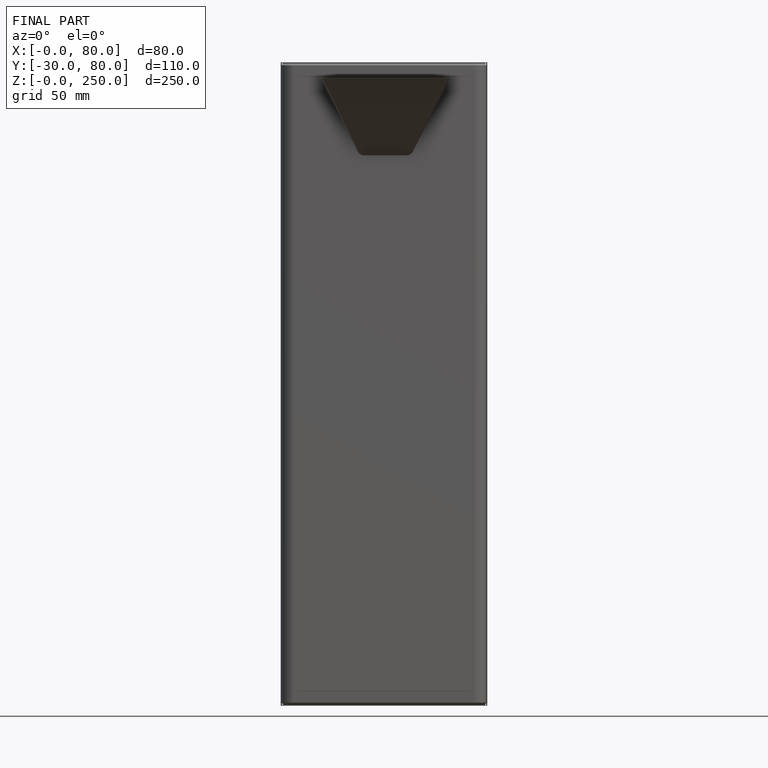
[diagram: finished part — front view with bounding-box wireframe]
